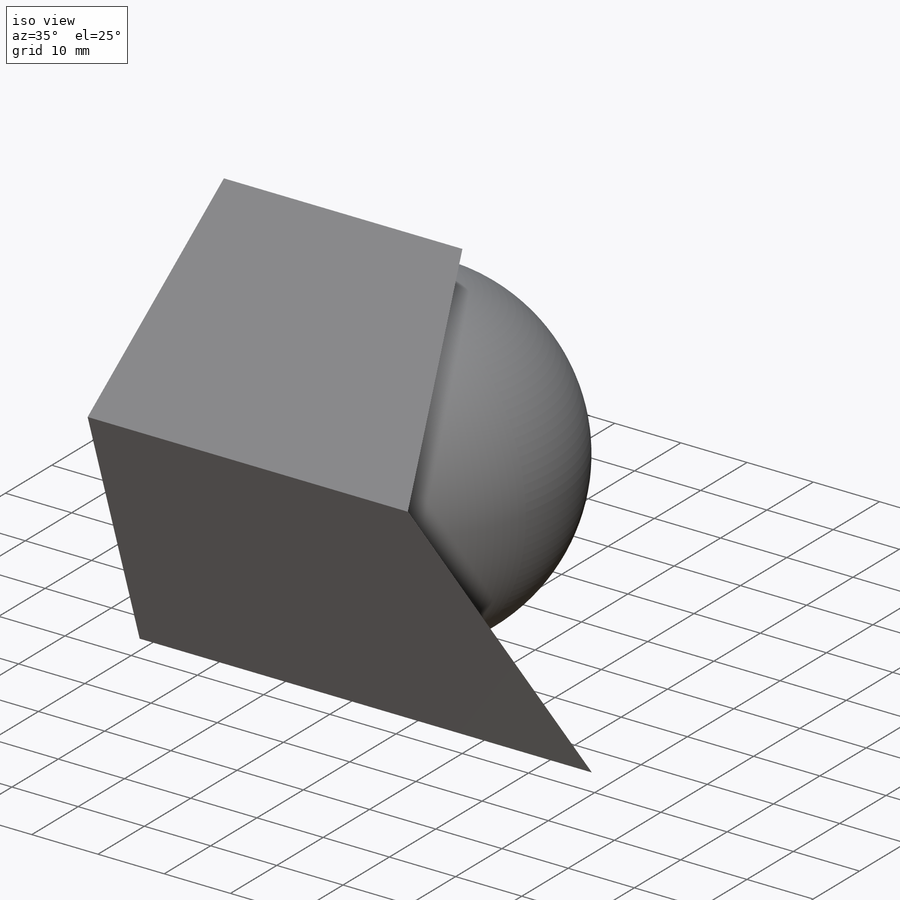
[diagram: iso view]
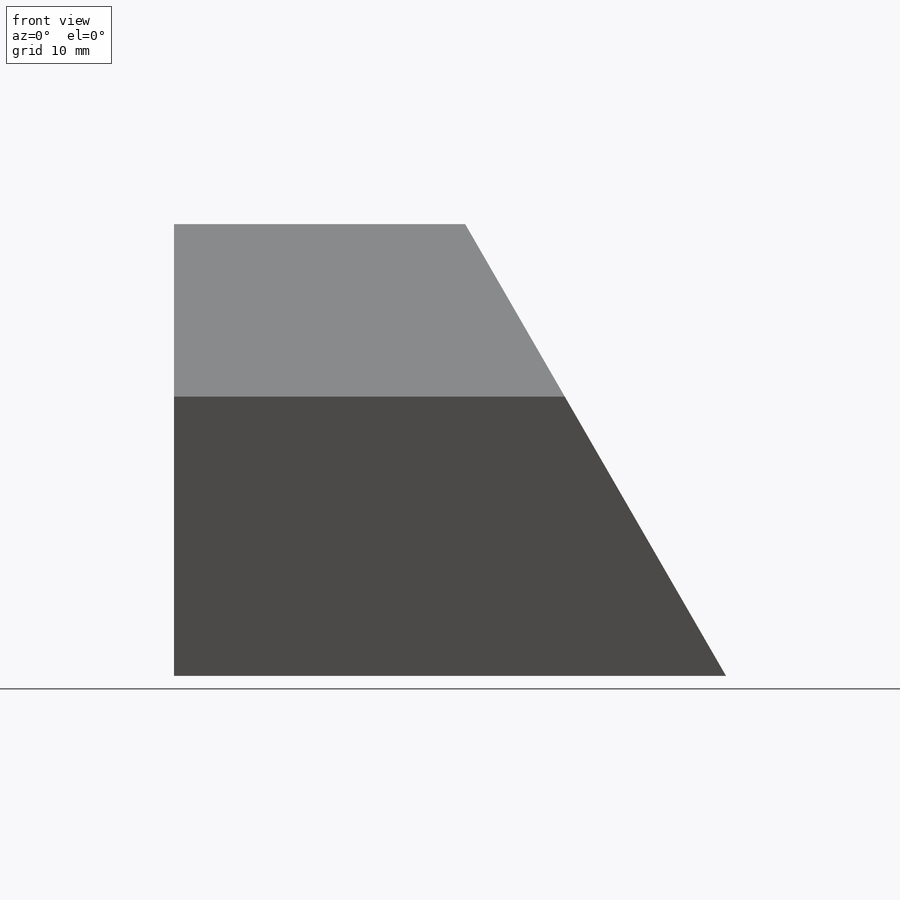
[diagram: front view]
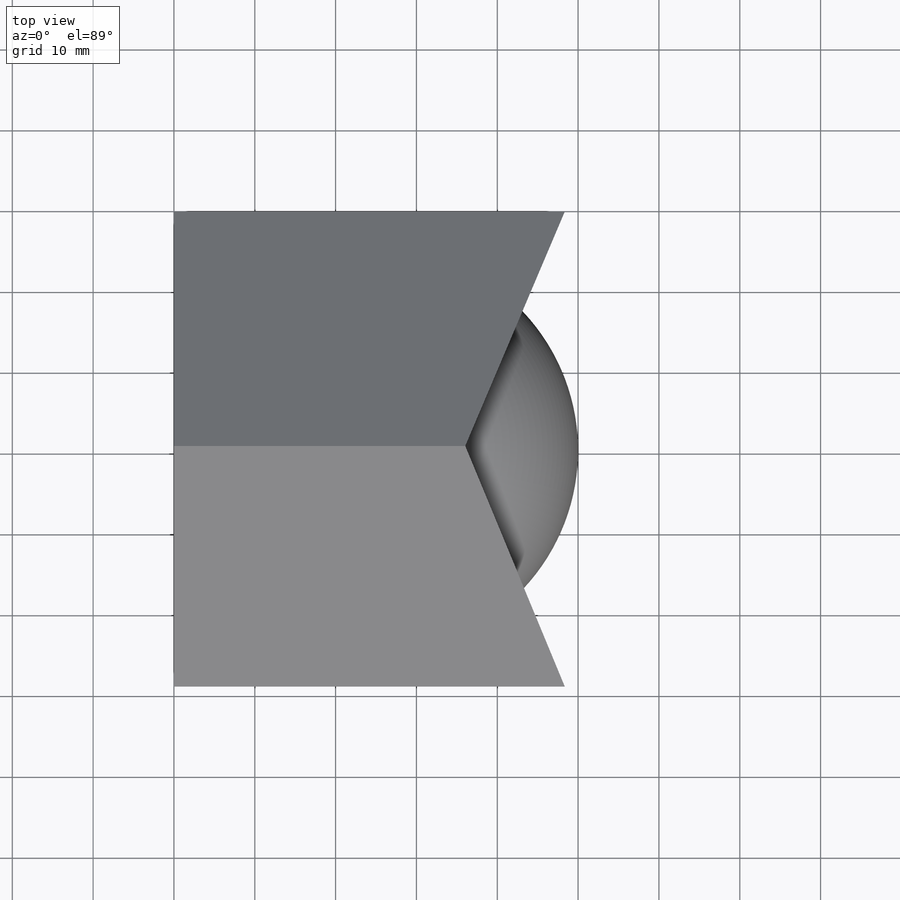
[diagram: top view]
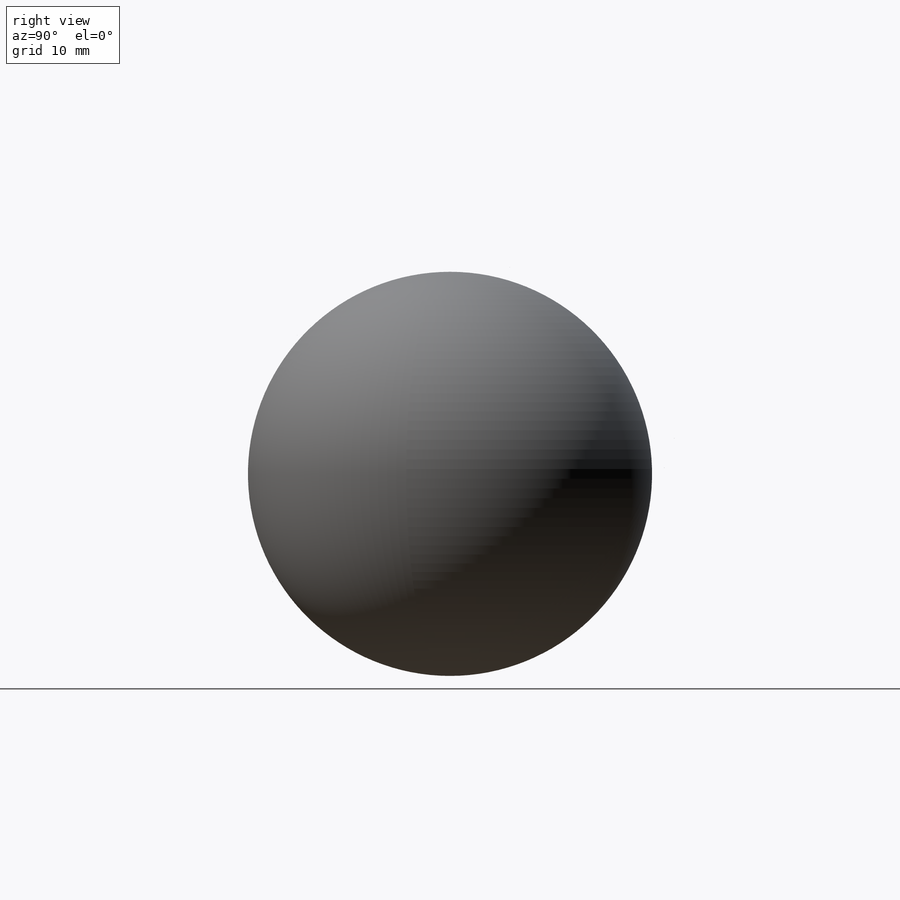
[diagram: right view]
SOLIDWORKS PART (.sldprt)
format: sldprt  version: not decoded by parser v0  size: 420,352 bytes
history: native  units: mm
features: sketch x3, material x1, extrude x1, revolve x1, cut_extrude x1 (+14 scaffold rows collapsed)
feature tree (21):
  scaffold x14  (default folders/planes/origin — collapsed)
  material  "Material <not specified>"
  sketch  "Sketch1"  dims[D1=~53.350136deg]
  extrude  "Extrude1"  Depth=70mm
  sketch  "Sketch2"  dims[D1=25.0mm]
  revolve  "Revolve1"  Angle=360deg
  sketch  "Sketch3"  dims[c1.D1=25.0mm c1.D2=30.0deg c2.D2=25.0mm c3.D2=60.0deg]
  cut_extrude  "Cut-Extrude1"  Depth=60mm
decode coverage: 6 of 6 modeling features carry decoded parameters
note: ~ marks probable driven/reference dimensions
note: suppression state not decoded; provenance and decode notes live in map.json
